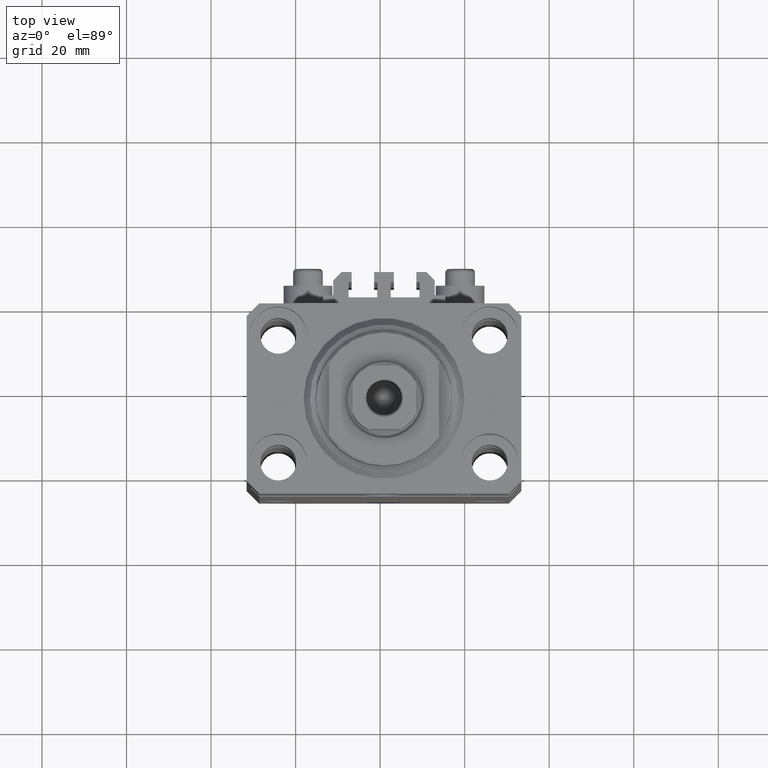
[diagram: clean part render]
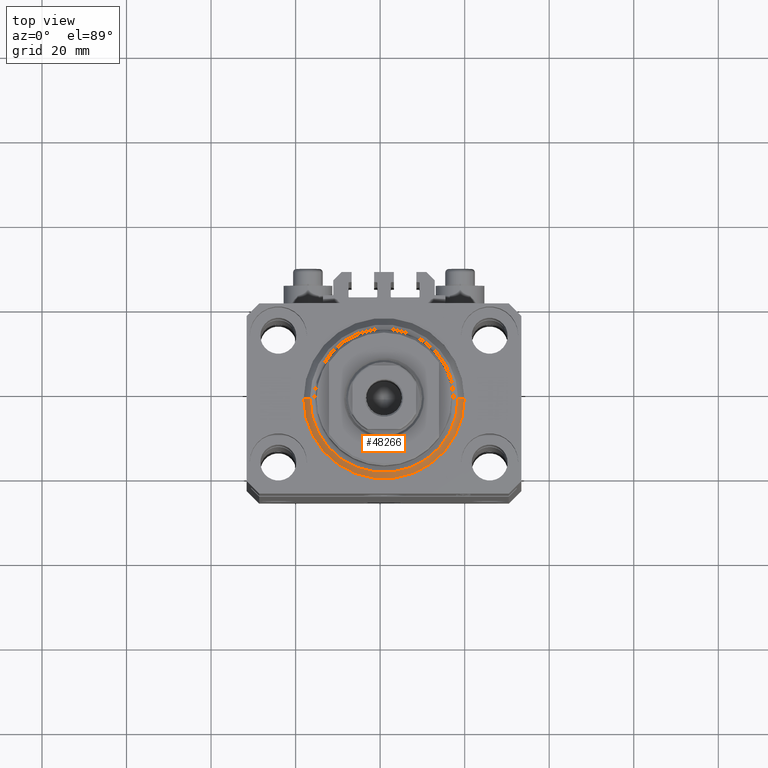
[diagram: same view with one face highlighted and labeled with its STEP entity id]
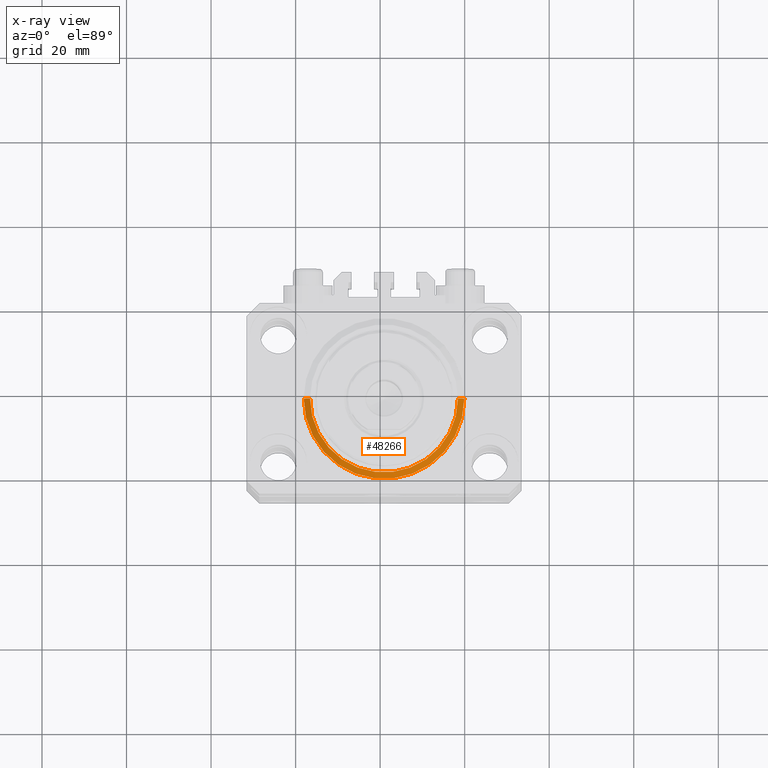
[diagram: x-ray of the same camera — body ghosted, the highlighted face saturated]
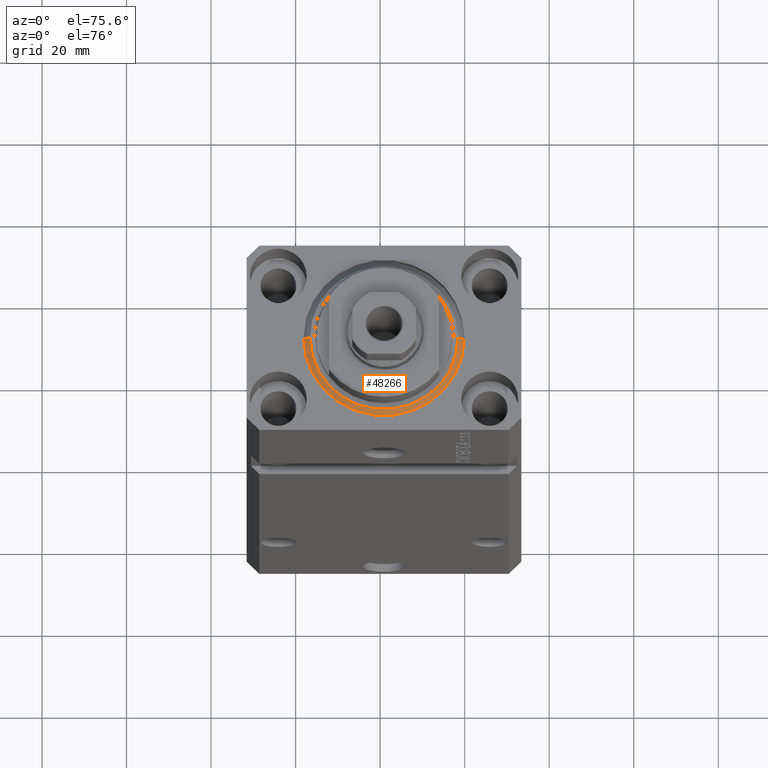
[diagram: same view with one face highlighted and labeled with its STEP entity id]
A machine part, top view. The second image highlights one B-rep face of the part: STEP entity #48266.
The next image is the same camera in x-ray: the body ghosted, the highlighted face saturated — about 0% of this face is hidden behind the body in this view.
A second angle (auxiliary view) of the same face is appended — the face is thin or edge-on in the first view.
In plain terms, the highlighted conical surface has half-angle 45 deg.
Its self-contained STEP definition (entity closure, byte-faithful):
#758 = CARTESIAN_POINT ( 'NONE',  ( 19.00000000000000000, 2.326828918379970970E-15, 1.500000000000004885 ) ) ;
#1396 = VERTEX_POINT ( 'NONE', #13224 ) ;
#3338 = FACE_OUTER_BOUND ( 'NONE', #27109, .T. ) ;
#3473 = DIRECTION ( 'NONE',  ( -0.7071067811865483499, 8.659560562354943952E-17, 0.7071067811865467956 ) ) ;
#5267 = AXIS2_PLACEMENT_3D ( 'NONE', #21905, #32642, #25789 ) ;
#5348 = VERTEX_POINT ( 'NONE', #29439 ) ;
#7537 = DIRECTION ( 'NONE',  ( 1.000000000000000000, 0.000000000000000000, 0.000000000000000000 ) ) ;
#8691 = EDGE_CURVE ( 'NONE', #5348, #17987, #36896, .T. ) ;
#10303 = DIRECTION ( 'NONE',  ( 0.7071067811865483499, 0.000000000000000000, 0.7071067811865467956 ) ) ;
#11003 = CARTESIAN_POINT ( 'NONE',  ( 19.00000000000000000, 0.000000000000000000, 1.500000000000004885 ) ) ;
#11122 = DIRECTION ( 'NONE',  ( 1.000000000000000000, 0.000000000000000000, 0.000000000000000000 ) ) ;
#13224 = CARTESIAN_POINT ( 'NONE',  ( 17.49999999999999289, 0.000000000000000000, 0.000000000000000000 ) ) ;
#15616 = EDGE_CURVE ( 'NONE', #1396, #31382, #28838, .T. ) ;
#16172 = VECTOR ( 'NONE', #10303, 1000.000000000000000 ) ;
#16512 = EDGE_CURVE ( 'NONE', #17987, #31382, #26276, .T. ) ;
#17987 = VERTEX_POINT ( 'NONE', #42527 ) ;
#21905 = CARTESIAN_POINT ( 'NONE',  ( 0.000000000000000000, 0.000000000000000000, 1.500000000000004885 ) ) ;
#23512 = AXIS2_PLACEMENT_3D ( 'NONE', #42946, #37296, #7537 ) ;
#25308 = VECTOR ( 'NONE', #3473, 1000.000000000000000 ) ;
#25789 = DIRECTION ( 'NONE',  ( 1.000000000000000000, 0.000000000000000000, 0.000000000000000000 ) ) ;
#26276 = CIRCLE ( 'NONE', #5267, 19.00000000000000000 ) ;
#27109 = EDGE_LOOP ( 'NONE', ( #40355, #29453, #39230, #44487 ) ) ;
#28838 = LINE ( 'NONE', #11003, #16172 ) ;
#29439 = CARTESIAN_POINT ( 'NONE',  ( -17.49999999999999289, 2.234980408443919215E-15, 0.000000000000000000 ) ) ;
#29453 = ORIENTED_EDGE ( 'NONE', *, *, #29606, .F. ) ;
#29606 = EDGE_CURVE ( 'NONE', #1396, #5348, #46105, .T. ) ;
#29665 = AXIS2_PLACEMENT_3D ( 'NONE', #48188, #37695, #11122 ) ;
#31382 = VERTEX_POINT ( 'NONE', #758 ) ;
#32642 = DIRECTION ( 'NONE',  ( -0.000000000000000000, -0.000000000000000000, 1.000000000000000000 ) ) ;
#36896 = LINE ( 'NONE', #41006, #25308 ) ;
#37296 = DIRECTION ( 'NONE',  ( -0.000000000000000000, -0.000000000000000000, -1.000000000000000000 ) ) ;
#37695 = DIRECTION ( 'NONE',  ( -0.000000000000000000, -0.000000000000000000, 1.000000000000000000 ) ) ;
#39230 = ORIENTED_EDGE ( 'NONE', *, *, #15616, .T. ) ;
#40355 = ORIENTED_EDGE ( 'NONE', *, *, #8691, .F. ) ;
#41006 = CARTESIAN_POINT ( 'NONE',  ( -19.00000000000000000, 2.326828918379970970E-15, 1.500000000000004885 ) ) ;
#42527 = CARTESIAN_POINT ( 'NONE',  ( -19.00000000000000000, 0.000000000000000000, 1.500000000000004885 ) ) ;
#42946 = CARTESIAN_POINT ( 'NONE',  ( 0.000000000000000000, 0.000000000000000000, 0.000000000000000000 ) ) ;
#44487 = ORIENTED_EDGE ( 'NONE', *, *, #16512, .F. ) ;
#45263 = CONICAL_SURFACE ( 'NONE', #29665, 19.00000000000000000, 0.7853981633974492782 ) ;
#46105 = CIRCLE ( 'NONE', #23512, 17.49999999999999289 ) ;
#48188 = CARTESIAN_POINT ( 'NONE',  ( 0.000000000000000000, 0.000000000000000000, 1.500000000000004885 ) ) ;
#48266 = ADVANCED_FACE ( 'NONE', ( #3338 ), #45263, .T. ) ;